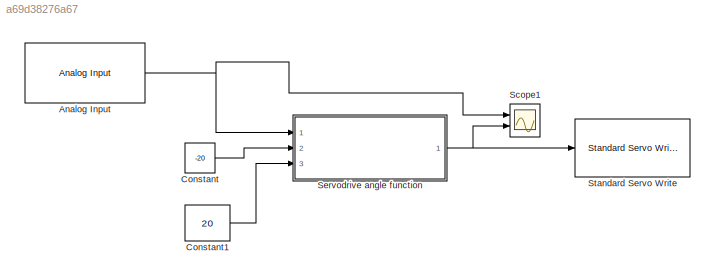
MODEL slx_a69d38276a67
KIND model
CONFIG AbsTol = auto
CONFIG EnableMultiTasking = on
CONFIG FixedStep = auto
CONFIG MaxStep = auto
CONFIG MinStep = auto
CONFIG RelTol = 1e-3
CONFIG SampleTimeConstraint = Unconstrained
CONFIG Solver = FixedStepAuto
CONFIG SolverName = FixedStepAuto
CONFIG StartTime = 0.0
CONFIG StopTime = inf
BLOCK [Reference] Analog Input  REF=arduinolib/Analog Input
  Ports = [0, 1]
  SourceBlock = arduinolib/Analog Input
  SourceProductBaseCode = ARDUINO
  SourceProductName = Simulink Support Package for Arduino Hardware
  SourceType = Arduino Analog Input
BLOCK [Constant] Constant
  SampleTime = 0.025
  Value = -20
BLOCK [Constant] Constant1
  SampleTime = 0.025
  Value = 20
BLOCK [Scope] Scope1
  Floating = off
  NumInputPorts = 2
  Ports = [2]
  ScopeSpecificationString = Simulink.scopes.TimeScopeBlockCfg('CurrentConfiguration', extmgr.ConfigurationSet(extmgr.Configuration('Core','General UI',true),extmgr.Configuration('Core','Source UI',true),extmgr.Configuration('Sources','WiredSimulink',true,'DataLoggingVariableName','ScopeData1'),extmgr.Configuration('Visuals','Time Domain',true,'SerializedDisplays',{struct('MinYLimReal','7.125','MaxYLimReal','1135.875','YLabel...<+1497ch>
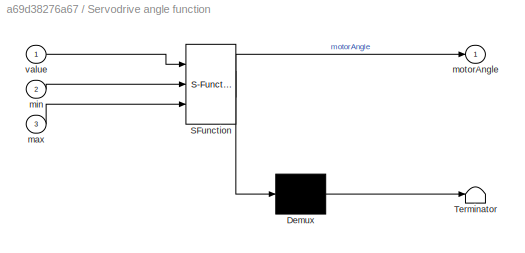
BLOCK [SubSystem] Servodrive angle function
  ErrorFcn = Stateflow.Translate.translate
  PermitHierarchicalResolution = ExplicitOnly
  Ports = [3, 1]
  RequestExecContextInheritance = off
  SFBlockType = MATLAB Function
  TreatAsAtomicUnit = on
BLOCK [Demux] Servodrive angle function/ Demux 
  Outputs = 1
  Ports = [1, 1]
BLOCK [S-Function] Servodrive angle function/ SFunction 
  EnableBusSupport = on
  FunctionName = sf_sfun
  PortCounts = [3 2]
  Ports = [3, 2]
  SFcnIsStateOwnerBlock = off
  SFunctionDeploymentMode = off
  Tag = Stateflow S-Function 2
BLOCK [Terminator] Servodrive angle function/ Terminator 
BLOCK [Inport] Servodrive angle function/max
  IconDisplay = Port number
  Port = 3
BLOCK [Inport] Servodrive angle function/min
  IconDisplay = Port number
  Port = 2
BLOCK [Outport] Servodrive angle function/motorAngle
  IconDisplay = Port number
BLOCK [Inport] Servodrive angle function/value
  IconDisplay = Port number
BLOCK [Reference] Standard Servo Write  REF=arduinolib/Standard Servo Write
  Ports = [1]
  SourceBlock = arduinolib/Standard Servo Write
  SourceProductBaseCode = ARDUINO
  SourceProductName = Simulink Support Package for Arduino Hardware
  SourceType = Arduino Standard Servo Write
NET Analog Input:1 -> Scope1:1, Servodrive angle function:1
LINE Constant1:1 -> Servodrive angle function:3
LINE Constant:1 -> Servodrive angle function:2
NET Servodrive angle function:1 -> Scope1:2, Standard Servo Write:1
note: NET lines group one-source signal fan-out (src -> all destinations, sorted); 1:1 wires keep LINE
CHART Servodrive angle function states=1 transitions=1
  STATE_LABEL 'eML_blk_kernel()'
  STATE_LABEL 'SCRIPT:\nfunction motorAngle = fcn(value, min, max)\n\nmin = 120 + min;\nmax = 120 + max;\n\nmotorAngle = mapfun(value,0,1023,min, max);\n\nend\n'
